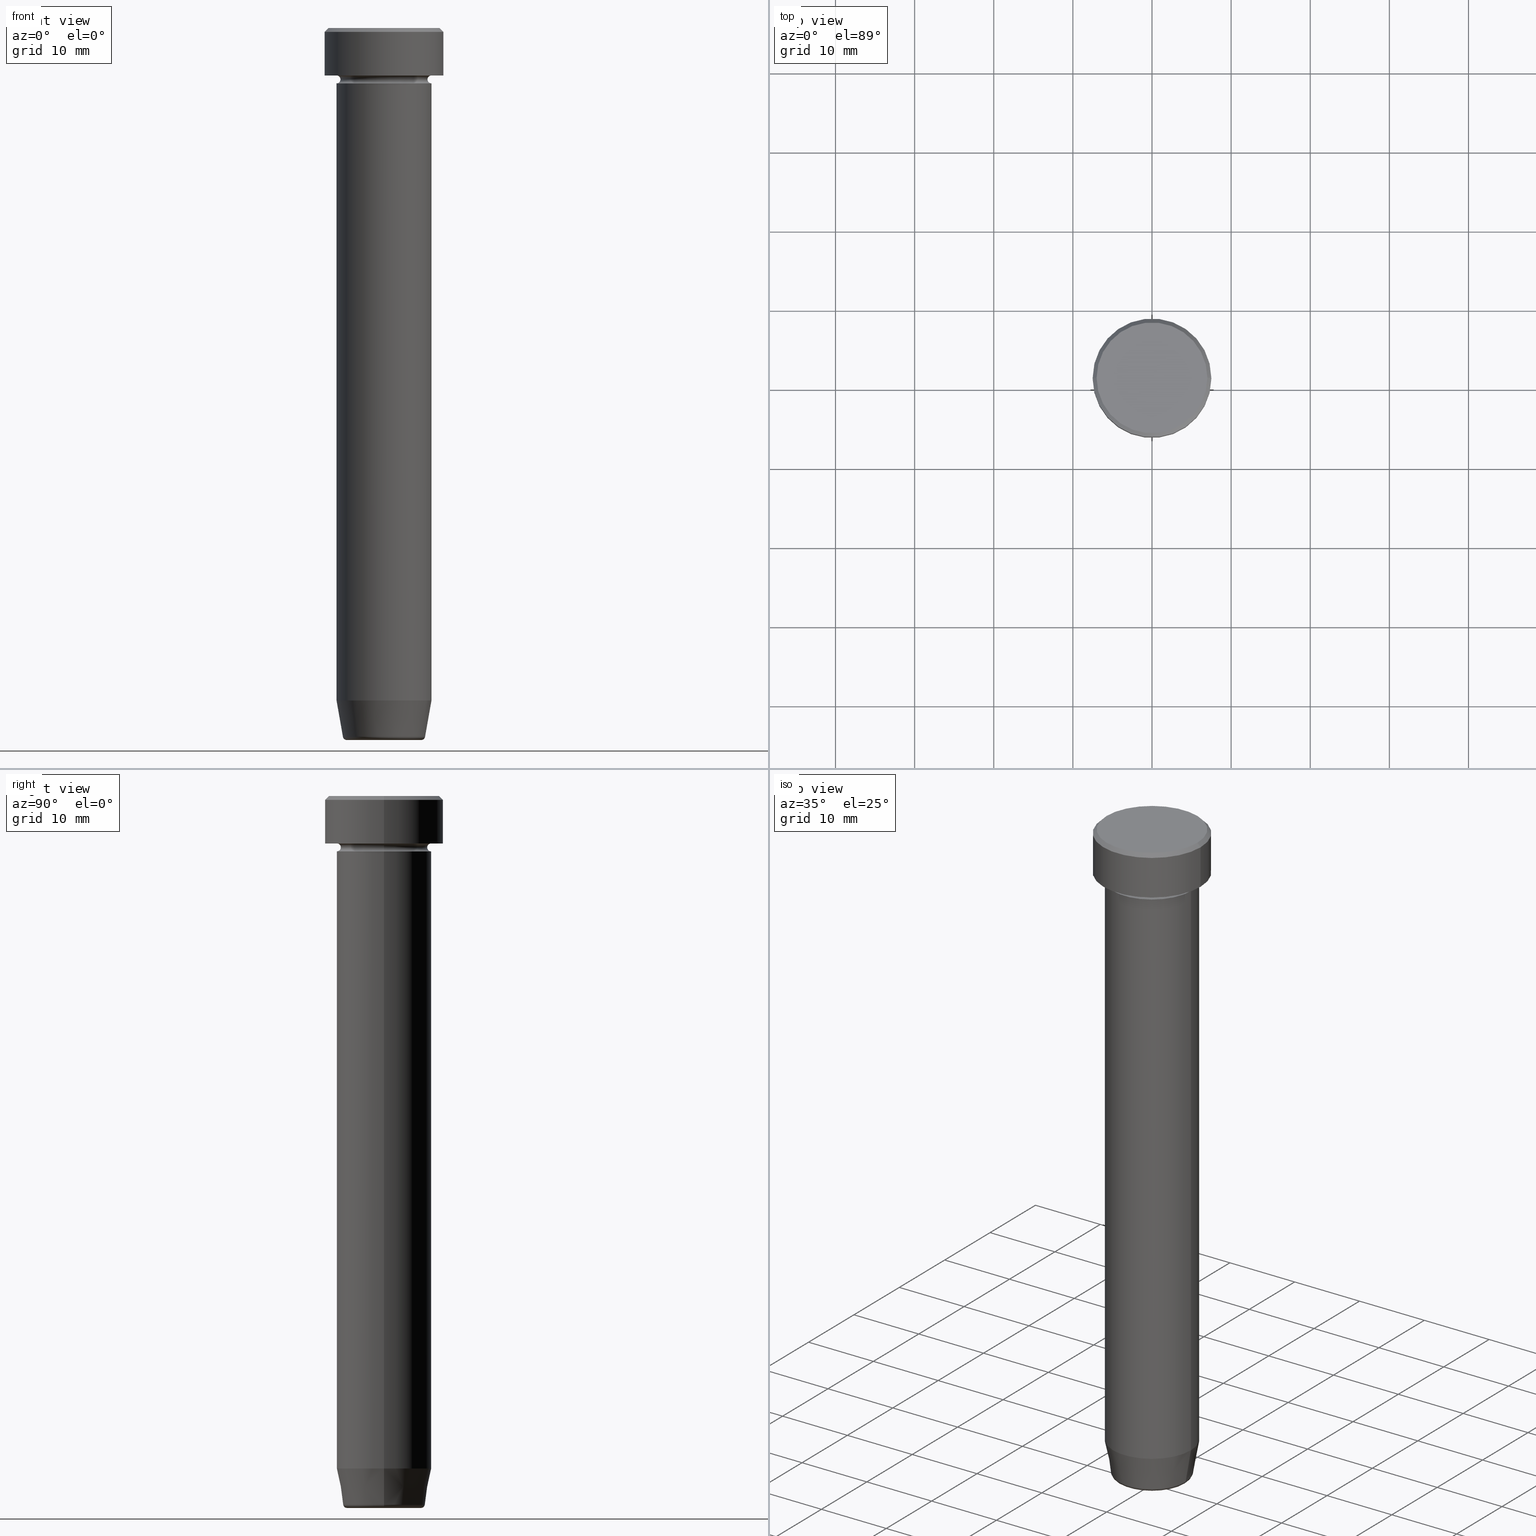
[diagram: canonical four-view strip — front | top / right | iso, engineering-drawing reading convention]
A machine part, canonical four-view strip (front | top / right | iso — engineering-drawing reading convention). The complete STEP part file that produces these views, byte-faithful:
ISO-10303-21;
HEADER;
FILE_DESCRIPTION (( 'STEP AP203' ),
    '1' );
FILE_NAME ('38e7.STEP',
    '2024-01-03T00:07:52',
    ( '' ),
    ( '' ),
    'SwSTEP 2.0',
    'SolidWorks 2019',
    '' );
FILE_SCHEMA (( 'CONFIG_CONTROL_DESIGN' ));
ENDSEC;

DATA;
#1 = EDGE_LOOP ( 'NONE', ( #160, #596, #99, #465 ) ) ;
#2 = DIRECTION ( 'NONE',  ( 1.000000000000000000, 0.000000000000000000, 0.000000000000000000 ) ) ;
#3 = APPROVAL_ROLE ( '' ) ;
#4 = ADVANCED_FACE ( 'NONE', ( #168 ), #206, .T. ) ;
#5 = ORIENTED_EDGE ( 'NONE', *, *, #360, .T. ) ;
#6 = CARTESIAN_POINT ( 'NONE',  ( -6.000000000000000000, 7.347880794884119736E-16, -6.500000000000000888 ) ) ;
#7 = AXIS2_PLACEMENT_3D ( 'NONE', #208, #392, #27 ) ;
#8 = AXIS2_PLACEMENT_3D ( 'NONE', #151, #47, #2 ) ;
#9 = LOCAL_TIME ( 1, 7, 52.00000000000000000, #378 ) ;
#10 = ORIENTED_EDGE ( 'NONE', *, *, #422, .T. ) ;
#11 = DIRECTION ( 'NONE',  ( -0.000000000000000000, -0.000000000000000000, 1.000000000000000000 ) ) ;
#12 = EDGE_CURVE ( 'NONE', #90, #415, #589, .T. ) ;
#13 = ORIENTED_EDGE ( 'NONE', *, *, #297, .F. ) ;
#14 = DIRECTION ( 'NONE',  ( -0.000000000000000000, -0.000000000000000000, 1.000000000000000000 ) ) ;
#15 = CARTESIAN_POINT ( 'NONE',  ( 5.118365096457672792, 0.000000000000000000, -90.00000000000000000 ) ) ;
#16 = APPLICATION_PROTOCOL_DEFINITION ( 'international standard', 'config_control_design', 1994, #127 ) ;
#17 = ORIENTED_EDGE ( 'NONE', *, *, #335, .T. ) ;
#18 = AXIS2_PLACEMENT_3D ( 'NONE', #77, #490, #268 ) ;
#19 = DIRECTION ( 'NONE',  ( 0.000000000000000000, -0.000000000000000000, 1.000000000000000000 ) ) ;
#20 = EDGE_CURVE ( 'NONE', #470, #94, #200, .T. ) ;
#21 = FACE_OUTER_BOUND ( 'NONE', #269, .T. ) ;
#22 = DIRECTION ( 'NONE',  ( 0.000000000000000000, 0.000000000000000000, -1.000000000000000000 ) ) ;
#23 = APPROVAL_STATUS ( 'not_yet_approved' ) ;
#24 = FACE_OUTER_BOUND ( 'NONE', #277, .T. ) ;
#25 = DIRECTION ( 'NONE',  ( -0.000000000000000000, -0.000000000000000000, 1.000000000000000000 ) ) ;
#26 = CARTESIAN_POINT ( 'NONE',  ( -6.000000000000000000, 7.347880794884119736E-16, 0.000000000000000000 ) ) ;
#27 = DIRECTION ( 'NONE',  ( 1.000000000000000000, 0.000000000000000000, 0.000000000000000000 ) ) ;
#28 = DIRECTION ( 'NONE',  ( 1.000000000000000000, 0.000000000000000000, 0.000000000000000000 ) ) ;
#29 = CIRCLE ( 'NONE', #125, 6.000000000000000000 ) ;
#30 = LINE ( 'NONE', #26, #560 ) ;
#31 = CYLINDRICAL_SURFACE ( 'NONE', #136, 6.000000000000000000 ) ;
#32 = EDGE_CURVE ( 'NONE', #462, #438, #65, .T. ) ;
#33 = CARTESIAN_POINT ( 'NONE',  ( -6.000000000000000000, 0.000000000000000000, -6.000000000000000000 ) ) ;
#34 = APPROVAL_DATE_TIME ( #121, #111 ) ;
#35 = COORDINATED_UNIVERSAL_TIME_OFFSET ( 1, 0, .AHEAD. ) ;
#36 = CARTESIAN_POINT ( 'NONE',  ( 7.500000000000000000, 0.000000000000000000, 0.000000000000000000 ) ) ;
#37 = EDGE_LOOP ( 'NONE', ( #416, #233, #188, #363 ) ) ;
#38 = DIRECTION ( 'NONE',  ( -0.000000000000000000, -0.000000000000000000, 1.000000000000000000 ) ) ;
#39 = ORIENTED_EDGE ( 'NONE', *, *, #12, .T. ) ;
#40 = AXIS2_PLACEMENT_3D ( 'NONE', #213, #350, #384 ) ;
#41 = EDGE_CURVE ( 'NONE', #50, #438, #259, .T. ) ;
#42 = FACE_OUTER_BOUND ( 'NONE', #104, .T. ) ;
#43 = ORIENTED_EDGE ( 'NONE', *, *, #504, .F. ) ;
#44 =( LENGTH_UNIT ( ) NAMED_UNIT ( * ) SI_UNIT ( .MILLI., .METRE. ) );
#45 = EDGE_LOOP ( 'NONE', ( #243, #13 ) ) ;
#46 = ORIENTED_EDGE ( 'NONE', *, *, #473, .F. ) ;
#47 = DIRECTION ( 'NONE',  ( -0.000000000000000000, -0.000000000000000000, 1.000000000000000000 ) ) ;
#48 = VECTOR ( 'NONE', #506, 1000.000000000000114 ) ;
#49 = EDGE_CURVE ( 'NONE', #150, #191, #183, .T. ) ;
#50 = VERTEX_POINT ( 'NONE', #527 ) ;
#51 = CARTESIAN_POINT ( 'NONE',  ( 0.000000000000000000, 0.000000000000000000, 0.000000000000000000 ) ) ;
#52 = DESIGN_CONTEXT ( 'detailed design', #501, 'design' ) ;
#53 = ORIENTED_EDGE ( 'NONE', *, *, #41, .T. ) ;
#54 = CARTESIAN_POINT ( 'NONE',  ( -7.500000000000000000, 9.184850993605147944E-16, 0.000000000000000000 ) ) ;
#55 = EDGE_LOOP ( 'NONE', ( #126, #457, #197, #332 ) ) ;
#56 = CARTESIAN_POINT ( 'NONE',  ( 0.000000000000000000, 0.000000000000000000, -6.000000000000000000 ) ) ;
#57 = ADVANCED_FACE ( 'NONE', ( #21 ), #158, .F. ) ;
#58 = CONICAL_SURFACE ( 'NONE', #598, 7.000000000000001776, 0.7853981633974473908 ) ;
#59 = CC_DESIGN_APPROVAL ( #111, ( #257 ) ) ;
#60 = ORIENTED_EDGE ( 'NONE', *, *, #379, .F. ) ;
#61 = CARTESIAN_POINT ( 'NONE',  ( -6.000000000000000000, 0.000000000000000000, -6.500000000000000888 ) ) ;
#62 = DIRECTION ( 'NONE',  ( -0.000000000000000000, -0.000000000000000000, 1.000000000000000000 ) ) ;
#63 = DIRECTION ( 'NONE',  ( -0.000000000000000000, -0.000000000000000000, 1.000000000000000000 ) ) ;
#64 = DIRECTION ( 'NONE',  ( -0.000000000000000000, -0.000000000000000000, 1.000000000000000000 ) ) ;
#65 = CIRCLE ( 'NONE', #410, 0.5000000000000004441 ) ;
#66 = DIRECTION ( 'NONE',  ( 0.1736481776669306087, 0.000000000000000000, 0.9848077530122081313 ) ) ;
#67 = AXIS2_PLACEMENT_3D ( 'NONE', #6, #336, #436 ) ;
#68 = CC_DESIGN_SECURITY_CLASSIFICATION ( #421, ( #88 ) ) ;
#69 = CARTESIAN_POINT ( 'NONE',  ( -7.000000000000001776, 0.000000000000000000, 0.000000000000000000 ) ) ;
#70 = DIRECTION ( 'NONE',  ( -0.000000000000000000, -0.000000000000000000, 1.000000000000000000 ) ) ;
#71 = CARTESIAN_POINT ( 'NONE',  ( 0.000000000000000000, 0.000000000000000000, -17.00000000000000000 ) ) ;
#72 = EDGE_LOOP ( 'NONE', ( #131, #229 ) ) ;
#73 = DIRECTION ( 'NONE',  ( 1.000000000000000000, 0.000000000000000000, 0.000000000000000000 ) ) ;
#74 = EDGE_CURVE ( 'NONE', #94, #415, #303, .T. ) ;
#75 = DIRECTION ( 'NONE',  ( -0.000000000000000000, -0.000000000000000000, 1.000000000000000000 ) ) ;
#76 = CARTESIAN_POINT ( 'NONE',  ( -5.118365096457672792, 6.268189432244423169E-16, -90.00000000000000000 ) ) ;
#77 = CARTESIAN_POINT ( 'NONE',  ( 0.000000000000000000, 0.000000000000000000, 0.000000000000000000 ) ) ;
#78 = AXIS2_PLACEMENT_3D ( 'NONE', #400, #582, #403 ) ;
#79 = ADVANCED_FACE ( 'NONE', ( #24 ), #394, .F. ) ;
#80 = PERSON_AND_ORGANIZATION ( #494, #469 ) ;
#81 = CARTESIAN_POINT ( 'NONE',  ( -6.000000000000000000, 7.347880794884119736E-16, 0.000000000000000000 ) ) ;
#82 = PERSON_AND_ORGANIZATION_ROLE ( 'classification_officer' ) ;
#83 = CYLINDRICAL_SURFACE ( 'NONE', #18, 7.500000000000000000 ) ;
#84 = EDGE_CURVE ( 'NONE', #476, #542, #305, .T. ) ;
#85 = PERSON_AND_ORGANIZATION ( #494, #469 ) ;
#86 = CARTESIAN_POINT ( 'NONE',  ( 0.000000000000000000, 0.000000000000000000, -89.50000000000000000 ) ) ;
#87 = CC_DESIGN_PERSON_AND_ORGANIZATION_ASSIGNMENT ( #117, #82, ( #421 ) ) ;
#88 = PRODUCT_DEFINITION_FORMATION_WITH_SPECIFIED_SOURCE ( 'LIBOVOLN�', '', #549, .NOT_KNOWN. ) ;
#89 =( NAMED_UNIT ( * ) PLANE_ANGLE_UNIT ( ) SI_UNIT ( $, .RADIAN. ) );
#90 = VERTEX_POINT ( 'NONE', #492 ) ;
#91 = ORIENTED_EDGE ( 'NONE', *, *, #93, .T. ) ;
#92 = DIRECTION ( 'NONE',  ( -0.000000000000000000, -0.000000000000000000, 1.000000000000000000 ) ) ;
#93 = EDGE_CURVE ( 'NONE', #300, #462, #559, .T. ) ;
#94 = VERTEX_POINT ( 'NONE', #249 ) ;
#95 = PERSON_AND_ORGANIZATION ( #494, #469 ) ;
#96 = CARTESIAN_POINT ( 'NONE',  ( 0.000000000000000000, 0.000000000000000000, -17.00000000000000000 ) ) ;
#97 = AXIS2_PLACEMENT_3D ( 'NONE', #124, #256, #73 ) ;
#98 = CC_DESIGN_PERSON_AND_ORGANIZATION_ASSIGNMENT ( #80, #454, ( #88 ) ) ;
#99 = ORIENTED_EDGE ( 'NONE', *, *, #335, .F. ) ;
#100 = DIRECTION ( 'NONE',  ( -0.000000000000000000, -0.000000000000000000, 1.000000000000000000 ) ) ;
#101 = ORIENTED_EDGE ( 'NONE', *, *, #301, .T. ) ;
#102 = EDGE_CURVE ( 'NONE', #517, #476, #519, .T. ) ;
#103 = DIRECTION ( 'NONE',  ( -0.000000000000000000, -0.000000000000000000, 1.000000000000000000 ) ) ;
#104 = EDGE_LOOP ( 'NONE', ( #43, #509 ) ) ;
#105 = CARTESIAN_POINT ( 'NONE',  ( -6.000000000000000000, 7.347880794884119736E-16, -17.00000000000000000 ) ) ;
#106 = CIRCLE ( 'NONE', #420, 7.500000000000000000 ) ;
#107 = CARTESIAN_POINT ( 'NONE',  ( 6.000000000000000000, 0.000000000000000000, -6.500000000000000888 ) ) ;
#108 = CARTESIAN_POINT ( 'NONE',  ( 0.000000000000000000, 0.000000000000000000, -90.00000000000000000 ) ) ;
#109 = ADVANCED_FACE ( 'NONE', ( #341 ), #135, .T. ) ;
#110 = DIRECTION ( 'NONE',  ( 1.000000000000000000, 0.000000000000000000, 0.000000000000000000 ) ) ;
#111 = APPROVAL ( #23, 'NEUR�EN�' ) ;
#112 = DIRECTION ( 'NONE',  ( 1.000000000000000000, 0.000000000000000000, 0.000000000000000000 ) ) ;
#113 = AXIS2_PLACEMENT_3D ( 'NONE', #51, #103, #557 ) ;
#114 = DIRECTION ( 'NONE',  ( -0.000000000000000000, -0.000000000000000000, 1.000000000000000000 ) ) ;
#115 = DIRECTION ( 'NONE',  ( 1.000000000000000000, 0.000000000000000000, 0.000000000000000000 ) ) ;
#116 = EDGE_CURVE ( 'NONE', #408, #542, #529, .T. ) ;
#117 = PERSON_AND_ORGANIZATION ( #494, #469 ) ;
#118 = FACE_OUTER_BOUND ( 'NONE', #255, .T. ) ;
#119 = CARTESIAN_POINT ( 'NONE',  ( 0.000000000000000000, 0.000000000000000000, 0.000000000000000000 ) ) ;
#120 = CC_DESIGN_PERSON_AND_ORGANIZATION_ASSIGNMENT ( #579, #165, ( #257 ) ) ;
#121 = DATE_AND_TIME ( #210, #296 ) ;
#122 = DIRECTION ( 'NONE',  ( -0.000000000000000000, -0.000000000000000000, 1.000000000000000000 ) ) ;
#123 = AXIS2_PLACEMENT_3D ( 'NONE', #489, #342, #398 ) ;
#124 = CARTESIAN_POINT ( 'NONE',  ( 0.000000000000000000, 0.000000000000000000, -0.4999999999999987232 ) ) ;
#125 = AXIS2_PLACEMENT_3D ( 'NONE', #143, #562, #330 ) ;
#126 = ORIENTED_EDGE ( 'NONE', *, *, #409, .T. ) ;
#127 = APPLICATION_CONTEXT ( 'configuration controlled 3d designs of mechanical parts and assemblies' ) ;
#128 = EDGE_CURVE ( 'NONE', #191, #150, #546, .T. ) ;
#129 = APPROVAL_DATE_TIME ( #533, #204 ) ;
#130 = ORIENTED_EDGE ( 'NONE', *, *, #164, .F. ) ;
#131 = ORIENTED_EDGE ( 'NONE', *, *, #279, .T. ) ;
#132 = PERSON_AND_ORGANIZATION ( #494, #469 ) ;
#133 = DIRECTION ( 'NONE',  ( 0.000000000000000000, 0.000000000000000000, -1.000000000000000000 ) ) ;
#134 = CARTESIAN_POINT ( 'NONE',  ( 0.000000000000000000, 0.000000000000000000, 0.000000000000000000 ) ) ;
#135 = CONICAL_SURFACE ( 'NONE', #478, 5.118365096457672792, 0.1745329251994331976 ) ;
#136 = AXIS2_PLACEMENT_3D ( 'NONE', #215, #584, #496 ) ;
#137 = ORIENTED_EDGE ( 'NONE', *, *, #128, .F. ) ;
#138 = DIRECTION ( 'NONE',  ( -0.000000000000000000, -0.000000000000000000, 1.000000000000000000 ) ) ;
#139 = DIRECTION ( 'NONE',  ( -0.000000000000000000, -0.000000000000000000, 1.000000000000000000 ) ) ;
#140 = VERTEX_POINT ( 'NONE', #450 ) ;
#141 = LINE ( 'NONE', #518, #48 ) ;
#142 = ORIENTED_EDGE ( 'NONE', *, *, #279, .F. ) ;
#143 = CARTESIAN_POINT ( 'NONE',  ( 0.000000000000000000, 0.000000000000000000, -6.000000000000000000 ) ) ;
#144 = VECTOR ( 'NONE', #443, 1000.000000000000114 ) ;
#145 = AXIS2_PLACEMENT_3D ( 'NONE', #192, #426, #241 ) ;
#146 = CIRCLE ( 'NONE', #97, 7.500000000000000000 ) ;
#147 = ORIENTED_EDGE ( 'NONE', *, *, #389, .F. ) ;
#148 = DIRECTION ( 'NONE',  ( 0.000000000000000000, -1.000000000000000000, 0.000000000000000000 ) ) ;
#149 = EDGE_CURVE ( 'NONE', #517, #408, #402, .T. ) ;
#150 = VERTEX_POINT ( 'NONE', #262 ) ;
#151 = CARTESIAN_POINT ( 'NONE',  ( 0.000000000000000000, 0.000000000000000000, 0.000000000000000000 ) ) ;
#152 = ORIENTED_EDGE ( 'NONE', *, *, #483, .T. ) ;
#153 = CARTESIAN_POINT ( 'NONE',  ( 0.000000000000000000, 0.000000000000000000, 0.000000000000000000 ) ) ;
#154 = AXIS2_PLACEMENT_3D ( 'NONE', #108, #299, #484 ) ;
#155 = AXIS2_PLACEMENT_3D ( 'NONE', #172, #309, #554 ) ;
#156 = DIRECTION ( 'NONE',  ( -0.000000000000000000, -0.000000000000000000, 1.000000000000000000 ) ) ;
#157 = ADVANCED_FACE ( 'NONE', ( #118 ), #31, .T. ) ;
#158 = PLANE ( 'NONE',  #343 ) ;
#159 = DIRECTION ( 'NONE',  ( 1.000000000000000000, 0.000000000000000000, 0.000000000000000000 ) ) ;
#160 = ORIENTED_EDGE ( 'NONE', *, *, #164, .T. ) ;
#161 = CARTESIAN_POINT ( 'NONE',  ( 6.000000000000000000, 0.000000000000000000, -7.000000000000000000 ) ) ;
#162 = ORIENTED_EDGE ( 'NONE', *, *, #399, .F. ) ;
#163 = CIRCLE ( 'NONE', #155, 6.000000000000000000 ) ;
#164 = EDGE_CURVE ( 'NONE', #542, #408, #163, .T. ) ;
#165 = PERSON_AND_ORGANIZATION_ROLE ( 'creator' ) ;
#166 = CARTESIAN_POINT ( 'NONE',  ( -6.000000000000000000, 7.347880794884119736E-16, -7.000000000000000000 ) ) ;
#167 = APPROVAL_ROLE ( '' ) ;
#168 = FACE_OUTER_BOUND ( 'NONE', #283, .T. ) ;
#169 = CARTESIAN_POINT ( 'NONE',  ( 0.000000000000000000, 4.898587196589413815E-15, -90.00000000000000000 ) ) ;
#170 = COORDINATED_UNIVERSAL_TIME_OFFSET ( 1, 0, .AHEAD. ) ;
#171 = PERSON_AND_ORGANIZATION_ROLE ( 'creator' ) ;
#172 = CARTESIAN_POINT ( 'NONE',  ( 0.000000000000000000, 0.000000000000000000, -84.99999999999998579 ) ) ;
#173 = CARTESIAN_POINT ( 'NONE',  ( -6.000000000000000000, 7.347880794884119736E-16, -17.00000000000000000 ) ) ;
#174 = AXIS2_PLACEMENT_3D ( 'NONE', #539, #22, #316 ) ;
#175 = ORIENTED_EDGE ( 'NONE', *, *, #149, .T. ) ;
#176 = LINE ( 'NONE', #81, #286 ) ;
#177 = FACE_OUTER_BOUND ( 'NONE', #322, .T. ) ;
#178 = CARTESIAN_POINT ( 'NONE',  ( 7.000000000000001776, 8.878689293818310074E-16, 0.000000000000000000 ) ) ;
#179 = ORIENTED_EDGE ( 'NONE', *, *, #12, .F. ) ;
#180 = DIRECTION ( 'NONE',  ( 1.000000000000000000, 0.000000000000000000, 0.000000000000000000 ) ) ;
#181 = EDGE_LOOP ( 'NONE', ( #404, #315, #53, #240 ) ) ;
#182 = ORIENTED_EDGE ( 'NONE', *, *, #399, .T. ) ;
#183 = CIRCLE ( 'NONE', #7, 4.698815280869031774 ) ;
#184 = VECTOR ( 'NONE', #235, 1000.000000000000000 ) ;
#185 = ORIENTED_EDGE ( 'NONE', *, *, #84, .F. ) ;
#186 = CC_DESIGN_PERSON_AND_ORGANIZATION_ASSIGNMENT ( #95, #205, ( #549 ) ) ;
#187 = DIRECTION ( 'NONE',  ( 0.000000000000000000, 0.000000000000000000, -1.000000000000000000 ) ) ;
#188 = ORIENTED_EDGE ( 'NONE', *, *, #507, .F. ) ;
#189 = CARTESIAN_POINT ( 'NONE',  ( 4.698815280869031774, 0.000000000000000000, -89.50000000000000000 ) ) ;
#190 = EDGE_CURVE ( 'NONE', #417, #289, #547, .T. ) ;
#191 = VERTEX_POINT ( 'NONE', #290 ) ;
#192 = CARTESIAN_POINT ( 'NONE',  ( 0.000000000000000000, 0.000000000000000000, -17.00000000000000000 ) ) ;
#193 = CIRCLE ( 'NONE', #433, 0.5000000000000004441 ) ;
#194 = DIRECTION ( 'NONE',  ( 1.000000000000000000, 0.000000000000000000, 0.000000000000000000 ) ) ;
#195 = ORIENTED_EDGE ( 'NONE', *, *, #49, .T. ) ;
#196 = DIRECTION ( 'NONE',  ( 1.000000000000000000, 0.000000000000000000, 0.000000000000000000 ) ) ;
#197 = ORIENTED_EDGE ( 'NONE', *, *, #360, .F. ) ;
#198 = FACE_OUTER_BOUND ( 'NONE', #246, .T. ) ;
#199 = CARTESIAN_POINT ( 'NONE',  ( 0.000000000000000000, 0.000000000000000000, -6.500000000000000888 ) ) ;
#200 = CIRCLE ( 'NONE', #536, 7.000000000000001776 ) ;
#201 = AXIS2_PLACEMENT_3D ( 'NONE', #96, #287, #333 ) ;
#202 = CC_DESIGN_APPROVAL ( #204, ( #88 ) ) ;
#203 = DIRECTION ( 'NONE',  ( -0.000000000000000000, -0.000000000000000000, 1.000000000000000000 ) ) ;
#204 = APPROVAL ( #278, 'NEUR�EN�' ) ;
#205 = PERSON_AND_ORGANIZATION_ROLE ( 'design_owner' ) ;
#206 = CYLINDRICAL_SURFACE ( 'NONE', #575, 7.500000000000000000 ) ;
#207 = EDGE_CURVE ( 'NONE', #470, #90, #141, .T. ) ;
#208 = CARTESIAN_POINT ( 'NONE',  ( 0.000000000000000000, 0.000000000000000000, -90.00000000000000000 ) ) ;
#209 = DIRECTION ( 'NONE',  ( 0.000000000000000000, -0.000000000000000000, 1.000000000000000000 ) ) ;
#210 = CALENDAR_DATE ( 2024, 3, 1 ) ;
#211 = AXIS2_PLACEMENT_3D ( 'NONE', #339, #63, #524 ) ;
#212 = AXIS2_PLACEMENT_3D ( 'NONE', #359, #587, #353 ) ;
#213 = CARTESIAN_POINT ( 'NONE',  ( 0.000000000000000000, 0.000000000000000000, -89.58682408883346682 ) ) ;
#214 = CC_DESIGN_APPROVAL ( #458, ( #421 ) ) ;
#215 = CARTESIAN_POINT ( 'NONE',  ( 0.000000000000000000, 0.000000000000000000, 0.000000000000000000 ) ) ;
#216 = DIRECTION ( 'NONE',  ( -0.000000000000000000, -0.000000000000000000, 1.000000000000000000 ) ) ;
#217 = ORIENTED_EDGE ( 'NONE', *, *, #483, .F. ) ;
#218 = CARTESIAN_POINT ( 'NONE',  ( -6.000000000000000000, 7.347880794884119736E-16, -84.99999999999998579 ) ) ;
#219 = CALENDAR_DATE ( 2024, 3, 1 ) ;
#220 = DIRECTION ( 'NONE',  ( -0.000000000000000000, -0.000000000000000000, 1.000000000000000000 ) ) ;
#221 = ORIENTED_EDGE ( 'NONE', *, *, #207, .F. ) ;
#222 = FACE_OUTER_BOUND ( 'NONE', #318, .T. ) ;
#223 = DATE_AND_TIME ( #308, #397 ) ;
#224 = VECTOR ( 'NONE', #66, 999.9999999999998863 ) ;
#225 = CARTESIAN_POINT ( 'NONE',  ( 5.500000000000000000, 0.000000000000000000, -6.500000000000000888 ) ) ;
#226 = AXIS2_PLACEMENT_3D ( 'NONE', #71, #254, #453 ) ;
#227 = AXIS2_PLACEMENT_3D ( 'NONE', #595, #138, #180 ) ;
#228 = APPROVAL_ROLE ( '' ) ;
#229 = ORIENTED_EDGE ( 'NONE', *, *, #340, .T. ) ;
#230 = EDGE_CURVE ( 'NONE', #417, #415, #481, .T. ) ;
#231 = FACE_BOUND ( 'NONE', #72, .T. ) ;
#232 = EDGE_LOOP ( 'NONE', ( #293, #137, #498, #593 ) ) ;
#233 = ORIENTED_EDGE ( 'NONE', *, *, #207, .T. ) ;
#234 = CIRCLE ( 'NONE', #201, 6.000000000000000000 ) ;
#235 = DIRECTION ( 'NONE',  ( -0.000000000000000000, -0.000000000000000000, 1.000000000000000000 ) ) ;
#236 = CONICAL_SURFACE ( 'NONE', #449, 7.000000000000001776, 0.7853981633974473908 ) ;
#237 = ORIENTED_EDGE ( 'NONE', *, *, #116, .F. ) ;
#238 = ADVANCED_FACE ( 'NONE', ( #247 ), #329, .T. ) ;
#239 = CYLINDRICAL_SURFACE ( 'NONE', #113, 6.000000000000000000 ) ;
#240 = ORIENTED_EDGE ( 'NONE', *, *, #352, .F. ) ;
#241 = DIRECTION ( 'NONE',  ( 1.000000000000000000, 0.000000000000000000, 0.000000000000000000 ) ) ;
#242 = DIRECTION ( 'NONE',  ( 0.000000000000000000, 0.000000000000000000, 1.000000000000000000 ) ) ;
#243 = ORIENTED_EDGE ( 'NONE', *, *, #409, .F. ) ;
#244 = DIRECTION ( 'NONE',  ( -1.000000000000000000, 0.000000000000000000, 0.000000000000000000 ) ) ;
#245 = TOROIDAL_SURFACE ( 'NONE', #577, 6.000000000000000000, 0.5000000000000000000 ) ;
#246 = EDGE_LOOP ( 'NONE', ( #556, #10, #217, #281 ) ) ;
#247 = FACE_OUTER_BOUND ( 'NONE', #323, .T. ) ;
#248 = ADVANCED_FACE ( 'NONE', ( #471 ), #239, .T. ) ;
#249 = CARTESIAN_POINT ( 'NONE',  ( -7.000000000000001776, 0.000000000000000000, 0.000000000000000000 ) ) ;
#250 = CARTESIAN_POINT ( 'NONE',  ( 0.000000000000000000, 0.000000000000000000, 0.000000000000000000 ) ) ;
#251 = VECTOR ( 'NONE', #534, 999.9999999999998863 ) ;
#252 = AXIS2_PLACEMENT_3D ( 'NONE', #86, #552, #275 ) ;
#253 = CARTESIAN_POINT ( 'NONE',  ( 6.000000000000000000, 0.000000000000000000, 0.000000000000000000 ) ) ;
#254 = DIRECTION ( 'NONE',  ( -0.000000000000000000, -0.000000000000000000, 1.000000000000000000 ) ) ;
#255 = EDGE_LOOP ( 'NONE', ( #147, #347, #570, #60 ) ) ;
#256 = DIRECTION ( 'NONE',  ( 0.000000000000000000, 0.000000000000000000, -1.000000000000000000 ) ) ;
#257 = PRODUCT_DEFINITION ( 'NEZN�M�', '', #88, #52 ) ;
#258 = DATE_AND_TIME ( #219, #578 ) ;
#259 = LINE ( 'NONE', #253, #320 ) ;
#260 = CARTESIAN_POINT ( 'NONE',  ( 0.000000000000000000, 0.000000000000000000, -6.000000000000000000 ) ) ;
#261 = AXIS2_PLACEMENT_3D ( 'NONE', #516, #477, #244 ) ;
#262 = CARTESIAN_POINT ( 'NONE',  ( -4.698815280869031774, 6.055899509126404334E-16, -90.00000000000000000 ) ) ;
#263 = AXIS2_PLACEMENT_3D ( 'NONE', #134, #139, #464 ) ;
#264 = CARTESIAN_POINT ( 'NONE',  ( 0.000000000000000000, 0.000000000000000000, -89.58682408883346682 ) ) ;
#265 = CALENDAR_DATE ( 2024, 3, 1 ) ;
#266 = APPROVAL_STATUS ( 'not_yet_approved' ) ;
#267 = ADVANCED_FACE ( 'NONE', ( #294 ), #429, .T. ) ;
#268 = DIRECTION ( 'NONE',  ( 1.000000000000000000, 0.000000000000000000, 0.000000000000000000 ) ) ;
#269 = EDGE_LOOP ( 'NONE', ( #17, #460 ) ) ;
#270 = COORDINATED_UNIVERSAL_TIME_OFFSET ( 1, 0, .AHEAD. ) ;
#271 = CARTESIAN_POINT ( 'NONE',  ( 0.000000000000000000, 0.000000000000000000, -6.500000000000000888 ) ) ;
#272 = EDGE_CURVE ( 'NONE', #300, #428, #568, .T. ) ;
#273 = ORIENTED_EDGE ( 'NONE', *, *, #128, .T. ) ;
#274 = DATE_TIME_ROLE ( 'classification_date' ) ;
#275 = DIRECTION ( 'NONE',  ( 1.000000000000000000, 0.000000000000000000, 0.000000000000000000 ) ) ;
#276 = CIRCLE ( 'NONE', #313, 6.000000000000000000 ) ;
#277 = EDGE_LOOP ( 'NONE', ( #91, #182, #142, #452 ) ) ;
#278 = APPROVAL_STATUS ( 'not_yet_approved' ) ;
#279 = EDGE_CURVE ( 'NONE', #515, #380, #29, .T. ) ;
#280 = CYLINDRICAL_SURFACE ( 'NONE', #263, 6.000000000000000000 ) ;
#281 = ORIENTED_EDGE ( 'NONE', *, *, #326, .F. ) ;
#282 = CC_DESIGN_DATE_AND_TIME_ASSIGNMENT ( #364, #543, ( #257 ) ) ;
#283 = EDGE_LOOP ( 'NONE', ( #285, #337, #550, #46 ) ) ;
#284 = DIRECTION ( 'NONE',  ( -0.000000000000000000, -0.000000000000000000, 1.000000000000000000 ) ) ;
#285 = ORIENTED_EDGE ( 'NONE', *, *, #504, .T. ) ;
#286 = VECTOR ( 'NONE', #38, 1000.000000000000000 ) ;
#287 = DIRECTION ( 'NONE',  ( -0.000000000000000000, -0.000000000000000000, 1.000000000000000000 ) ) ;
#288 = EDGE_CURVE ( 'NONE', #542, #140, #514, .T. ) ;
#289 = VERTEX_POINT ( 'NONE', #383 ) ;
#290 = CARTESIAN_POINT ( 'NONE',  ( 4.698815280869031774, 0.000000000000000000, -90.00000000000000000 ) ) ;
#291 = VERTEX_POINT ( 'NONE', #105 ) ;
#292 = CARTESIAN_POINT ( 'NONE',  ( -5.500000000000000000, 7.041719095097280880E-16, -6.500000000000000888 ) ) ;
#293 = ORIENTED_EDGE ( 'NONE', *, *, #422, .F. ) ;
#294 = FACE_OUTER_BOUND ( 'NONE', #55, .T. ) ;
#295 = AXIS2_PLACEMENT_3D ( 'NONE', #153, #14, #377 ) ;
#296 = LOCAL_TIME ( 1, 7, 52.00000000000000000, #532 ) ;
#297 = EDGE_CURVE ( 'NONE', #291, #50, #521, .T. ) ;
#298 = DIRECTION ( 'NONE',  ( 1.000000000000000000, 0.000000000000000000, 0.000000000000000000 ) ) ;
#299 = DIRECTION ( 'NONE',  ( 0.000000000000000000, 0.000000000000000000, -1.000000000000000000 ) ) ;
#300 = VERTEX_POINT ( 'NONE', #292 ) ;
#301 = EDGE_CURVE ( 'NONE', #300, #515, #193, .T. ) ;
#302 = AXIS2_PLACEMENT_3D ( 'NONE', #401, #122, #405 ) ;
#303 = LINE ( 'NONE', #69, #144 ) ;
#304 = FACE_OUTER_BOUND ( 'NONE', #358, .T. ) ;
#305 = LINE ( 'NONE', #15, #224 ) ;
#306 = LINE ( 'NONE', #36, #355 ) ;
#307 = CARTESIAN_POINT ( 'NONE',  ( 6.000000000000000000, 7.347880794884119736E-16, -6.000000000000000000 ) ) ;
#308 = CALENDAR_DATE ( 2024, 3, 1 ) ;
#309 = DIRECTION ( 'NONE',  ( -0.000000000000000000, -0.000000000000000000, 1.000000000000000000 ) ) ;
#310 = FACE_OUTER_BOUND ( 'NONE', #479, .T. ) ;
#311 = EDGE_CURVE ( 'NONE', #94, #470, #511, .T. ) ;
#312 = CARTESIAN_POINT ( 'NONE',  ( -7.500000000000000000, 9.184850993605147944E-16, -0.4999999999999987232 ) ) ;
#313 = AXIS2_PLACEMENT_3D ( 'NONE', #381, #64, #159 ) ;
#314 = DIRECTION ( 'NONE',  ( -1.000000000000000000, 0.000000000000000000, 0.000000000000000000 ) ) ;
#315 = ORIENTED_EDGE ( 'NONE', *, *, #297, .T. ) ;
#316 = DIRECTION ( 'NONE',  ( -1.000000000000000000, 0.000000000000000000, -0.000000000000000000 ) ) ;
#317 = CALENDAR_DATE ( 2024, 3, 1 ) ;
#318 = EDGE_LOOP ( 'NONE', ( #472, #563 ) ) ;
#319 = ADVANCED_FACE ( 'NONE', ( #198 ), #468, .T. ) ;
#320 = VECTOR ( 'NONE', #62, 1000.000000000000000 ) ;
#321 = VECTOR ( 'NONE', #284, 1000.000000000000000 ) ;
#322 = EDGE_LOOP ( 'NONE', ( #561, #505, #382, #5 ) ) ;
#323 = EDGE_LOOP ( 'NONE', ( #152, #175, #130, #185 ) ) ;
#324 = ORIENTED_EDGE ( 'NONE', *, *, #352, .T. ) ;
#325 = CARTESIAN_POINT ( 'NONE',  ( 0.000000000000000000, 0.000000000000000000, -89.50000000000000000 ) ) ;
#326 = EDGE_CURVE ( 'NONE', #191, #476, #440, .T. ) ;
#327 = DIRECTION ( 'NONE',  ( 0.000000000000000000, 0.000000000000000000, -1.000000000000000000 ) ) ;
#328 = ORIENTED_EDGE ( 'NONE', *, *, #340, .F. ) ;
#329 = CONICAL_SURFACE ( 'NONE', #448, 5.118365096457672792, 0.1745329251994331976 ) ;
#330 = DIRECTION ( 'NONE',  ( -1.000000000000000000, 0.000000000000000000, 0.000000000000000000 ) ) ;
#331 = AXIS2_PLACEMENT_3D ( 'NONE', #503, #327, #418 ) ;
#332 = ORIENTED_EDGE ( 'NONE', *, *, #41, .F. ) ;
#333 = DIRECTION ( 'NONE',  ( 1.000000000000000000, 0.000000000000000000, 0.000000000000000000 ) ) ;
#334 = ORIENTED_EDGE ( 'NONE', *, *, #528, .T. ) ;
#335 = EDGE_CURVE ( 'NONE', #140, #423, #234, .T. ) ;
#336 = DIRECTION ( 'NONE',  ( 1.224646799147353207E-16, 1.000000000000000000, 0.000000000000000000 ) ) ;
#337 = ORIENTED_EDGE ( 'NONE', *, *, #230, .T. ) ;
#338 = AXIS2_PLACEMENT_3D ( 'NONE', #189, #148, #370 ) ;
#339 = CARTESIAN_POINT ( 'NONE',  ( 0.000000000000000000, 0.000000000000000000, -84.99999999999998579 ) ) ;
#340 = EDGE_CURVE ( 'NONE', #380, #515, #590, .T. ) ;
#341 = FACE_OUTER_BOUND ( 'NONE', #553, .T. ) ;
#342 = DIRECTION ( 'NONE',  ( 0.000000000000000000, 0.000000000000000000, -1.000000000000000000 ) ) ;
#343 = AXIS2_PLACEMENT_3D ( 'NONE', #581, #441, #525 ) ;
#344 = AXIS2_PLACEMENT_3D ( 'NONE', #56, #100, #564 ) ;
#345 = CARTESIAN_POINT ( 'NONE',  ( 0.000000000000000000, 0.000000000000000000, 0.000000000000000000 ) ) ;
#346 = AXIS2_PLACEMENT_3D ( 'NONE', #475, #242, #194 ) ;
#347 = ORIENTED_EDGE ( 'NONE', *, *, #116, .T. ) ;
#348 = DIRECTION ( 'NONE',  ( 1.000000000000000000, 0.000000000000000000, 0.000000000000000000 ) ) ;
#349 = PLANE ( 'NONE',  #174 ) ;
#350 = DIRECTION ( 'NONE',  ( -0.000000000000000000, -0.000000000000000000, 1.000000000000000000 ) ) ;
#351 = FACE_OUTER_BOUND ( 'NONE', #368, .T. ) ;
#352 = EDGE_CURVE ( 'NONE', #428, #438, #480, .T. ) ;
#353 = DIRECTION ( 'NONE',  ( -1.000000000000000000, -1.224646799147351482E-16, 0.000000000000000000 ) ) ;
#354 = FACE_OUTER_BOUND ( 'NONE', #45, .T. ) ;
#355 = VECTOR ( 'NONE', #220, 1000.000000000000000 ) ;
#356 = TOROIDAL_SURFACE ( 'NONE', #488, 6.000000000000000000, 0.5000000000000000000 ) ;
#357 = FACE_OUTER_BOUND ( 'NONE', #1, .T. ) ;
#358 = EDGE_LOOP ( 'NONE', ( #162, #334, #101, #328 ) ) ;
#359 = CARTESIAN_POINT ( 'NONE',  ( 6.000000000000000000, 7.347880794884119736E-16, -6.500000000000000888 ) ) ;
#360 = EDGE_CURVE ( 'NONE', #438, #428, #276, .T. ) ;
#361 = FACE_OUTER_BOUND ( 'NONE', #520, .T. ) ;
#362 = DIRECTION ( 'NONE',  ( -1.000000000000000000, 0.000000000000000000, 0.000000000000000000 ) ) ;
#363 = ORIENTED_EDGE ( 'NONE', *, *, #74, .F. ) ;
#364 = DATE_AND_TIME ( #265, #396 ) ;
#365 = EDGE_LOOP ( 'NONE', ( #432, #369, #324, #372 ) ) ;
#366 = AXIS2_PLACEMENT_3D ( 'NONE', #345, #19, #115 ) ;
#367 = TOROIDAL_SURFACE ( 'NONE', #227, 6.000000000000000000, 0.5000000000000000000 ) ;
#368 = EDGE_LOOP ( 'NONE', ( #273, #195 ) ) ;
#369 = ORIENTED_EDGE ( 'NONE', *, *, #272, .T. ) ;
#370 = DIRECTION ( 'NONE',  ( 0.000000000000000000, 0.000000000000000000, -1.000000000000000000 ) ) ;
#371 = PRODUCT_DEFINITION_SHAPE ( 'NONE', 'NONE',  #257 ) ;
#372 = ORIENTED_EDGE ( 'NONE', *, *, #32, .F. ) ;
#373 = CARTESIAN_POINT ( 'NONE',  ( 0.000000000000000000, 0.000000000000000000, -90.00000000000000000 ) ) ;
#374 = MECHANICAL_CONTEXT ( 'NONE', #127, 'mechanical' ) ;
#375 = ORIENTED_EDGE ( 'NONE', *, *, #84, .T. ) ;
#376 = AXIS2_PLACEMENT_3D ( 'NONE', #169, #209, #455 ) ;
#377 = DIRECTION ( 'NONE',  ( 1.000000000000000000, 0.000000000000000000, 0.000000000000000000 ) ) ;
#378 = COORDINATED_UNIVERSAL_TIME_OFFSET ( 1, 0, .AHEAD. ) ;
#379 = EDGE_CURVE ( 'NONE', #423, #140, #395, .T. ) ;
#380 = VERTEX_POINT ( 'NONE', #307 ) ;
#381 = CARTESIAN_POINT ( 'NONE',  ( 0.000000000000000000, 0.000000000000000000, -7.000000000000000000 ) ) ;
#382 = ORIENTED_EDGE ( 'NONE', *, *, #32, .T. ) ;
#383 = CARTESIAN_POINT ( 'NONE',  ( 7.500000000000000000, 0.000000000000000000, -6.000000000000000000 ) ) ;
#384 = DIRECTION ( 'NONE',  ( -1.000000000000000000, 0.000000000000000000, 0.000000000000000000 ) ) ;
#385 = CLOSED_SHELL ( 'NONE', ( #319, #238, #558, #57, #157, #109, #463, #545 ) ) ;
#386 = AXIS2_PLACEMENT_3D ( 'NONE', #391, #583, #442 ) ;
#387 = TOROIDAL_SURFACE ( 'NONE', #252, 4.698815280869031774, 0.5000000000000000000 ) ;
#388 = DIRECTION ( 'NONE',  ( 1.000000000000000000, 0.000000000000000000, 0.000000000000000000 ) ) ;
#389 = EDGE_CURVE ( 'NONE', #408, #423, #30, .T. ) ;
#390 = CARTESIAN_POINT ( 'NONE',  ( 0.000000000000000000, 0.000000000000000000, -6.500000000000000888 ) ) ;
#391 = CARTESIAN_POINT ( 'NONE',  ( -4.698815280869031774, 5.754389093500930360E-16, -89.50000000000000000 ) ) ;
#392 = DIRECTION ( 'NONE',  ( 0.000000000000000000, 0.000000000000000000, -1.000000000000000000 ) ) ;
#393 = PLANE ( 'NONE',  #376 ) ;
#394 = TOROIDAL_SURFACE ( 'NONE', #486, 6.000000000000000000, 0.5000000000000000000 ) ;
#395 = CIRCLE ( 'NONE', #226, 6.000000000000000000 ) ;
#396 = LOCAL_TIME ( 1, 7, 52.00000000000000000, #170 ) ;
#397 = LOCAL_TIME ( 1, 7, 52.00000000000000000, #270 ) ;
#398 = DIRECTION ( 'NONE',  ( 1.000000000000000000, 0.000000000000000000, 0.000000000000000000 ) ) ;
#399 = EDGE_CURVE ( 'NONE', #462, #380, #537, .T. ) ;
#400 = CARTESIAN_POINT ( 'NONE',  ( 0.000000000000000000, 0.000000000000000000, -6.500000000000000888 ) ) ;
#401 = CARTESIAN_POINT ( 'NONE',  ( 0.000000000000000000, 0.000000000000000000, -17.00000000000000000 ) ) ;
#402 = LINE ( 'NONE', #76, #251 ) ;
#403 = DIRECTION ( 'NONE',  ( 1.000000000000000000, 0.000000000000000000, 0.000000000000000000 ) ) ;
#404 = ORIENTED_EDGE ( 'NONE', *, *, #439, .F. ) ;
#405 = DIRECTION ( 'NONE',  ( 1.000000000000000000, 0.000000000000000000, 0.000000000000000000 ) ) ;
#406 = SHAPE_DEFINITION_REPRESENTATION ( #371, #597 ) ;
#407 = CARTESIAN_POINT ( 'NONE',  ( -5.191219157375138060, 6.852645359818002966E-16, -89.58682408883346682 ) ) ;
#408 = VERTEX_POINT ( 'NONE', #218 ) ;
#409 = EDGE_CURVE ( 'NONE', #50, #291, #497, .T. ) ;
#410 = AXIS2_PLACEMENT_3D ( 'NONE', #107, #437, #482 ) ;
#411 = AXIS2_PLACEMENT_3D ( 'NONE', #434, #11, #196 ) ;
#412 = PLANE ( 'NONE',  #331 ) ;
#413 = SECURITY_CLASSIFICATION_LEVEL ( 'unclassified' ) ;
#414 = CARTESIAN_POINT ( 'NONE',  ( 5.191219157375138060, 0.000000000000000000, -89.58682408883346682 ) ) ;
#415 = VERTEX_POINT ( 'NONE', #312 ) ;
#416 = ORIENTED_EDGE ( 'NONE', *, *, #20, .F. ) ;
#417 = VERTEX_POINT ( 'NONE', #580 ) ;
#418 = DIRECTION ( 'NONE',  ( -1.000000000000000000, 0.000000000000000000, -0.000000000000000000 ) ) ;
#419 = AXIS2_PLACEMENT_3D ( 'NONE', #390, #203, #388 ) ;
#420 = AXIS2_PLACEMENT_3D ( 'NONE', #260, #70, #348 ) ;
#421 = SECURITY_CLASSIFICATION ( '', '', #413 ) ;
#422 = EDGE_CURVE ( 'NONE', #150, #517, #502, .T. ) ;
#423 = VERTEX_POINT ( 'NONE', #173 ) ;
#424 = DIRECTION ( 'NONE',  ( -0.000000000000000000, -1.000000000000000000, -0.000000000000000000 ) ) ;
#425 = ORIENTED_EDGE ( 'NONE', *, *, #311, .F. ) ;
#426 = DIRECTION ( 'NONE',  ( -0.000000000000000000, -0.000000000000000000, 1.000000000000000000 ) ) ;
#427 =( NAMED_UNIT ( * ) SI_UNIT ( $, .STERADIAN. ) SOLID_ANGLE_UNIT ( ) );
#428 = VERTEX_POINT ( 'NONE', #166 ) ;
#429 = CYLINDRICAL_SURFACE ( 'NONE', #8, 6.000000000000000000 ) ;
#430 = ADVANCED_FACE ( 'NONE', ( #354 ), #349, .T. ) ;
#431 = PERSON_AND_ORGANIZATION ( #494, #469 ) ;
#432 = ORIENTED_EDGE ( 'NONE', *, *, #93, .F. ) ;
#433 = AXIS2_PLACEMENT_3D ( 'NONE', #61, #424, #187 ) ;
#434 = CARTESIAN_POINT ( 'NONE',  ( 0.000000000000000000, 0.000000000000000000, -7.000000000000000000 ) ) ;
#435 = ORIENTED_EDGE ( 'NONE', *, *, #149, .F. ) ;
#436 = DIRECTION ( 'NONE',  ( -1.000000000000000000, 1.224646799147351482E-16, 0.000000000000000000 ) ) ;
#437 = DIRECTION ( 'NONE',  ( 0.000000000000000000, -1.000000000000000000, 0.000000000000000000 ) ) ;
#438 = VERTEX_POINT ( 'NONE', #161 ) ;
#439 = EDGE_CURVE ( 'NONE', #291, #428, #176, .T. ) ;
#440 = CIRCLE ( 'NONE', #338, 0.5000000000000004441 ) ;
#441 = DIRECTION ( 'NONE',  ( 0.000000000000000000, 0.000000000000000000, -1.000000000000000000 ) ) ;
#442 = DIRECTION ( 'NONE',  ( -1.000000000000000000, 1.224646799147351482E-16, 0.000000000000000000 ) ) ;
#443 = DIRECTION ( 'NONE',  ( -0.7071067811865469066, 0.000000000000000000, -0.7071067811865481278 ) ) ;
#444 = ADVANCED_FACE ( 'NONE', ( #222 ), #573, .T. ) ;
#445 = DIRECTION ( 'NONE',  ( -0.000000000000000000, -0.000000000000000000, 1.000000000000000000 ) ) ;
#446 = FACE_OUTER_BOUND ( 'NONE', #365, .T. ) ;
#447 = CLOSED_SHELL ( 'NONE', ( #499, #79, #523, #267, #4, #430, #444, #456, #571, #248, #586, #491, #594 ) ) ;
#448 = AXIS2_PLACEMENT_3D ( 'NONE', #373, #466, #566 ) ;
#449 = AXIS2_PLACEMENT_3D ( 'NONE', #544, #133, #508 ) ;
#450 = CARTESIAN_POINT ( 'NONE',  ( 6.000000000000000000, 0.000000000000000000, -17.00000000000000000 ) ) ;
#451 = CARTESIAN_POINT ( 'NONE',  ( 0.000000000000000000, 0.000000000000000000, -6.500000000000000888 ) ) ;
#452 = ORIENTED_EDGE ( 'NONE', *, *, #301, .F. ) ;
#453 = DIRECTION ( 'NONE',  ( 1.000000000000000000, 0.000000000000000000, 0.000000000000000000 ) ) ;
#454 = PERSON_AND_ORGANIZATION_ROLE ( 'design_supplier' ) ;
#455 = DIRECTION ( 'NONE',  ( 1.000000000000000000, 0.000000000000000000, 0.000000000000000000 ) ) ;
#456 = ADVANCED_FACE ( 'NONE', ( #310 ), #83, .T. ) ;
#457 = ORIENTED_EDGE ( 'NONE', *, *, #439, .T. ) ;
#458 = APPROVAL ( #266, 'NEUR�EN�' ) ;
#459 = CIRCLE ( 'NONE', #530, 5.191219157375138060 ) ;
#460 = ORIENTED_EDGE ( 'NONE', *, *, #379, .T. ) ;
#461 = UNCERTAINTY_MEASURE_WITH_UNIT (LENGTH_MEASURE( 1.000000000000000082E-05 ), #44, 'distance_accuracy_value', 'NONE');
#462 = VERTEX_POINT ( 'NONE', #225 ) ;
#463 = ADVANCED_FACE ( 'NONE', ( #351 ), #393, .F. ) ;
#464 = DIRECTION ( 'NONE',  ( 1.000000000000000000, 0.000000000000000000, 0.000000000000000000 ) ) ;
#465 = ORIENTED_EDGE ( 'NONE', *, *, #288, .F. ) ;
#466 = DIRECTION ( 'NONE',  ( -0.000000000000000000, -0.000000000000000000, 1.000000000000000000 ) ) ;
#467 = CC_DESIGN_DATE_AND_TIME_ASSIGNMENT ( #223, #274, ( #421 ) ) ;
#468 = TOROIDAL_SURFACE ( 'NONE', #487, 4.698815280869031774, 0.5000000000000000000 ) ;
#469 = ORGANIZATION ( 'NEUR�EN�', 'NEUR�EN�', '' ) ;
#470 = VERTEX_POINT ( 'NONE', #178 ) ;
#471 = FACE_OUTER_BOUND ( 'NONE', #181, .T. ) ;
#472 = ORIENTED_EDGE ( 'NONE', *, *, #311, .T. ) ;
#473 = EDGE_CURVE ( 'NONE', #289, #90, #306, .T. ) ;
#474 = CARTESIAN_POINT ( 'NONE',  ( 6.000000000000000000, 0.000000000000000000, 0.000000000000000000 ) ) ;
#475 = CARTESIAN_POINT ( 'NONE',  ( 0.000000000000000000, 0.000000000000000000, 0.000000000000000000 ) ) ;
#476 = VERTEX_POINT ( 'NONE', #414 ) ;
#477 = DIRECTION ( 'NONE',  ( -0.000000000000000000, -0.000000000000000000, 1.000000000000000000 ) ) ;
#478 = AXIS2_PLACEMENT_3D ( 'NONE', #567, #156, #110 ) ;
#479 = EDGE_LOOP ( 'NONE', ( #540, #599, #565, #39 ) ) ;
#480 = CIRCLE ( 'NONE', #411, 6.000000000000000000 ) ;
#481 = LINE ( 'NONE', #54, #321 ) ;
#482 = DIRECTION ( 'NONE',  ( 0.000000000000000000, 0.000000000000000000, -1.000000000000000000 ) ) ;
#483 = EDGE_CURVE ( 'NONE', #476, #517, #459, .T. ) ;
#484 = DIRECTION ( 'NONE',  ( 1.000000000000000000, 0.000000000000000000, 0.000000000000000000 ) ) ;
#485 = DIRECTION ( 'NONE',  ( -1.000000000000000000, 0.000000000000000000, 0.000000000000000000 ) ) ;
#486 = AXIS2_PLACEMENT_3D ( 'NONE', #199, #572, #485 ) ;
#487 = AXIS2_PLACEMENT_3D ( 'NONE', #325, #92, #510 ) ;
#488 = AXIS2_PLACEMENT_3D ( 'NONE', #451, #25, #28 ) ;
#489 = CARTESIAN_POINT ( 'NONE',  ( 0.000000000000000000, 0.000000000000000000, -0.4999999999999987232 ) ) ;
#490 = DIRECTION ( 'NONE',  ( -0.000000000000000000, -0.000000000000000000, 1.000000000000000000 ) ) ;
#491 = ADVANCED_FACE ( 'NONE', ( #304 ), #245, .F. ) ;
#492 = CARTESIAN_POINT ( 'NONE',  ( 7.500000000000000000, 0.000000000000000000, -0.4999999999999987232 ) ) ;
#493 = FACE_OUTER_BOUND ( 'NONE', #37, .T. ) ;
#494 = PERSON ( 'NEUR�EN�', 'NEUR�EN�', 'NEUR�EN�', ('NEUR�EN�'), ('NEUR�EN�'), ('NEUR�EN�') ) ;
#495 = APPROVAL_DATE_TIME ( #258, #458 ) ;
#496 = DIRECTION ( 'NONE',  ( 1.000000000000000000, 0.000000000000000000, 0.000000000000000000 ) ) ;
#497 = CIRCLE ( 'NONE', #302, 6.000000000000000000 ) ;
#498 = ORIENTED_EDGE ( 'NONE', *, *, #326, .T. ) ;
#499 = ADVANCED_FACE ( 'NONE', ( #493 ), #58, .T. ) ;
#500 = ORIENTED_EDGE ( 'NONE', *, *, #102, .T. ) ;
#501 = APPLICATION_CONTEXT ( 'configuration controlled 3d designs of mechanical parts and assemblies' ) ;
#502 = CIRCLE ( 'NONE', #386, 0.5000000000000004441 ) ;
#503 = CARTESIAN_POINT ( 'NONE',  ( 0.000000000000000000, 7.500000000000000000, -6.000000000000000000 ) ) ;
#504 = EDGE_CURVE ( 'NONE', #289, #417, #106, .T. ) ;
#505 = ORIENTED_EDGE ( 'NONE', *, *, #528, .F. ) ;
#506 = DIRECTION ( 'NONE',  ( 0.7071067811865469066, 8.659560562354925463E-17, -0.7071067811865481278 ) ) ;
#507 = EDGE_CURVE ( 'NONE', #415, #90, #146, .T. ) ;
#508 = DIRECTION ( 'NONE',  ( -1.000000000000000000, 0.000000000000000000, 0.000000000000000000 ) ) ;
#509 = ORIENTED_EDGE ( 'NONE', *, *, #190, .F. ) ;
#510 = DIRECTION ( 'NONE',  ( 1.000000000000000000, 0.000000000000000000, 0.000000000000000000 ) ) ;
#511 = CIRCLE ( 'NONE', #295, 7.000000000000001776 ) ;
#512 = APPROVAL_PERSON_ORGANIZATION ( #431, #111, #167 ) ;
#513 = ORIENTED_EDGE ( 'NONE', *, *, #74, .T. ) ;
#514 = LINE ( 'NONE', #474, #184 ) ;
#515 = VERTEX_POINT ( 'NONE', #33 ) ;
#516 = CARTESIAN_POINT ( 'NONE',  ( 0.000000000000000000, 0.000000000000000000, -6.000000000000000000 ) ) ;
#517 = VERTEX_POINT ( 'NONE', #407 ) ;
#518 = CARTESIAN_POINT ( 'NONE',  ( 7.000000000000001776, 8.572527594031474176E-16, 0.000000000000000000 ) ) ;
#519 = CIRCLE ( 'NONE', #40, 5.191219157375138060 ) ;
#520 = EDGE_LOOP ( 'NONE', ( #221, #425, #513, #179 ) ) ;
#521 = CIRCLE ( 'NONE', #145, 6.000000000000000000 ) ;
#522 =( GEOMETRIC_REPRESENTATION_CONTEXT ( 3 ) GLOBAL_UNCERTAINTY_ASSIGNED_CONTEXT ( ( #461 ) ) GLOBAL_UNIT_ASSIGNED_CONTEXT ( ( #44, #89, #427 ) ) REPRESENTATION_CONTEXT ( 'NONE', 'WORKASPACE' ) );
#523 = ADVANCED_FACE ( 'NONE', ( #446 ), #356, .F. ) ;
#524 = DIRECTION ( 'NONE',  ( 1.000000000000000000, 0.000000000000000000, 0.000000000000000000 ) ) ;
#525 = DIRECTION ( 'NONE',  ( -1.000000000000000000, 0.000000000000000000, -0.000000000000000000 ) ) ;
#526 = APPLICATION_PROTOCOL_DEFINITION ( 'international standard', 'config_control_design', 1994, #501 ) ;
#527 = CARTESIAN_POINT ( 'NONE',  ( 6.000000000000000000, 0.000000000000000000, -17.00000000000000000 ) ) ;
#528 = EDGE_CURVE ( 'NONE', #462, #300, #548, .T. ) ;
#529 = CIRCLE ( 'NONE', #211, 6.000000000000000000 ) ;
#530 = AXIS2_PLACEMENT_3D ( 'NONE', #264, #216, #535 ) ;
#531 = CARTESIAN_POINT ( 'NONE',  ( 0.000000000000000000, 0.000000000000000000, 0.000000000000000000 ) ) ;
#532 = COORDINATED_UNIVERSAL_TIME_OFFSET ( 1, 0, .AHEAD. ) ;
#533 = DATE_AND_TIME ( #317, #9 ) ;
#534 = DIRECTION ( 'NONE',  ( -0.1736481776669306087, 2.126576849575774688E-17, 0.9848077530122081313 ) ) ;
#535 = DIRECTION ( 'NONE',  ( -1.000000000000000000, 0.000000000000000000, 0.000000000000000000 ) ) ;
#536 = AXIS2_PLACEMENT_3D ( 'NONE', #531, #114, #112 ) ;
#537 = CIRCLE ( 'NONE', #212, 0.5000000000000004441 ) ;
#538 = APPROVAL_PERSON_ORGANIZATION ( #541, #458, #228 ) ;
#539 = CARTESIAN_POINT ( 'NONE',  ( 0.000000000000000000, 6.000000000000000000, -17.00000000000000000 ) ) ;
#540 = ORIENTED_EDGE ( 'NONE', *, *, #230, .F. ) ;
#541 = PERSON_AND_ORGANIZATION ( #494, #469 ) ;
#542 = VERTEX_POINT ( 'NONE', #585 ) ;
#543 = DATE_TIME_ROLE ( 'creation_date' ) ;
#544 = CARTESIAN_POINT ( 'NONE',  ( 0.000000000000000000, 0.000000000000000000, 0.000000000000000000 ) ) ;
#545 = ADVANCED_FACE ( 'NONE', ( #588 ), #387, .T. ) ;
#546 = CIRCLE ( 'NONE', #154, 4.698815280869031774 ) ;
#547 = CIRCLE ( 'NONE', #344, 7.500000000000000000 ) ;
#548 = CIRCLE ( 'NONE', #78, 5.500000000000000000 ) ;
#549 = PRODUCT ( '38e7', '38e7', '', ( #374 ) ) ;
#550 = ORIENTED_EDGE ( 'NONE', *, *, #507, .T. ) ;
#551 = MANIFOLD_SOLID_BREP ( 'Zkosen�1', #447 ) ;
#552 = DIRECTION ( 'NONE',  ( -0.000000000000000000, -0.000000000000000000, 1.000000000000000000 ) ) ;
#553 = EDGE_LOOP ( 'NONE', ( #435, #500, #375, #237 ) ) ;
#554 = DIRECTION ( 'NONE',  ( 1.000000000000000000, 0.000000000000000000, 0.000000000000000000 ) ) ;
#555 = MANIFOLD_SOLID_BREP ( 'Zaoblit4', #385 ) ;
#556 = ORIENTED_EDGE ( 'NONE', *, *, #49, .F. ) ;
#557 = DIRECTION ( 'NONE',  ( 1.000000000000000000, 0.000000000000000000, 0.000000000000000000 ) ) ;
#558 = ADVANCED_FACE ( 'NONE', ( #357 ), #280, .T. ) ;
#559 = CIRCLE ( 'NONE', #419, 5.500000000000000000 ) ;
#560 = VECTOR ( 'NONE', #75, 1000.000000000000000 ) ;
#561 = ORIENTED_EDGE ( 'NONE', *, *, #272, .F. ) ;
#562 = DIRECTION ( 'NONE',  ( -0.000000000000000000, -0.000000000000000000, 1.000000000000000000 ) ) ;
#563 = ORIENTED_EDGE ( 'NONE', *, *, #20, .T. ) ;
#564 = DIRECTION ( 'NONE',  ( 1.000000000000000000, 0.000000000000000000, 0.000000000000000000 ) ) ;
#565 = ORIENTED_EDGE ( 'NONE', *, *, #473, .T. ) ;
#566 = DIRECTION ( 'NONE',  ( 1.000000000000000000, 0.000000000000000000, 0.000000000000000000 ) ) ;
#567 = CARTESIAN_POINT ( 'NONE',  ( 0.000000000000000000, 0.000000000000000000, -90.00000000000000000 ) ) ;
#568 = CIRCLE ( 'NONE', #67, 0.5000000000000004441 ) ;
#569 = CC_DESIGN_PERSON_AND_ORGANIZATION_ASSIGNMENT ( #85, #171, ( #88 ) ) ;
#570 = ORIENTED_EDGE ( 'NONE', *, *, #288, .T. ) ;
#571 = ADVANCED_FACE ( 'NONE', ( #231, #42 ), #412, .T. ) ;
#572 = DIRECTION ( 'NONE',  ( 0.000000000000000000, 0.000000000000000000, -1.000000000000000000 ) ) ;
#573 = PLANE ( 'NONE',  #366 ) ;
#574 = PRODUCT_RELATED_PRODUCT_CATEGORY ( 'detail', '', ( #549 ) ) ;
#575 = AXIS2_PLACEMENT_3D ( 'NONE', #250, #445, #298 ) ;
#576 = DIRECTION ( 'NONE',  ( 0.000000000000000000, 0.000000000000000000, -1.000000000000000000 ) ) ;
#577 = AXIS2_PLACEMENT_3D ( 'NONE', #271, #592, #314 ) ;
#578 = LOCAL_TIME ( 1, 7, 52.00000000000000000, #35 ) ;
#579 = PERSON_AND_ORGANIZATION ( #494, #469 ) ;
#580 = CARTESIAN_POINT ( 'NONE',  ( -7.500000000000000000, 9.184850993605147944E-16, -6.000000000000000000 ) ) ;
#581 = CARTESIAN_POINT ( 'NONE',  ( 0.000000000000000000, 0.000000000000000000, -17.00000000000000000 ) ) ;
#582 = DIRECTION ( 'NONE',  ( -0.000000000000000000, -0.000000000000000000, 1.000000000000000000 ) ) ;
#583 = DIRECTION ( 'NONE',  ( 1.224646799147353207E-16, 1.000000000000000000, 0.000000000000000000 ) ) ;
#584 = DIRECTION ( 'NONE',  ( -0.000000000000000000, -0.000000000000000000, 1.000000000000000000 ) ) ;
#585 = CARTESIAN_POINT ( 'NONE',  ( 6.000000000000000000, 0.000000000000000000, -84.99999999999998579 ) ) ;
#586 = ADVANCED_FACE ( 'NONE', ( #177 ), #367, .F. ) ;
#587 = DIRECTION ( 'NONE',  ( -1.224646799147353207E-16, 1.000000000000000000, 0.000000000000000000 ) ) ;
#588 = FACE_OUTER_BOUND ( 'NONE', #232, .T. ) ;
#589 = CIRCLE ( 'NONE', #123, 7.500000000000000000 ) ;
#590 = CIRCLE ( 'NONE', #261, 6.000000000000000000 ) ;
#591 = APPROVAL_PERSON_ORGANIZATION ( #132, #204, #3 ) ;
#592 = DIRECTION ( 'NONE',  ( 0.000000000000000000, 0.000000000000000000, -1.000000000000000000 ) ) ;
#593 = ORIENTED_EDGE ( 'NONE', *, *, #102, .F. ) ;
#594 = ADVANCED_FACE ( 'NONE', ( #361 ), #236, .T. ) ;
#595 = CARTESIAN_POINT ( 'NONE',  ( 0.000000000000000000, 0.000000000000000000, -6.500000000000000888 ) ) ;
#596 = ORIENTED_EDGE ( 'NONE', *, *, #389, .T. ) ;
#597 = ADVANCED_BREP_SHAPE_REPRESENTATION ( '38e7', ( #551, #555, #346 ), #522 ) ;
#598 = AXIS2_PLACEMENT_3D ( 'NONE', #119, #576, #362 ) ;
#599 = ORIENTED_EDGE ( 'NONE', *, *, #190, .T. ) ;
ENDSEC;
END-ISO-10303-21;
